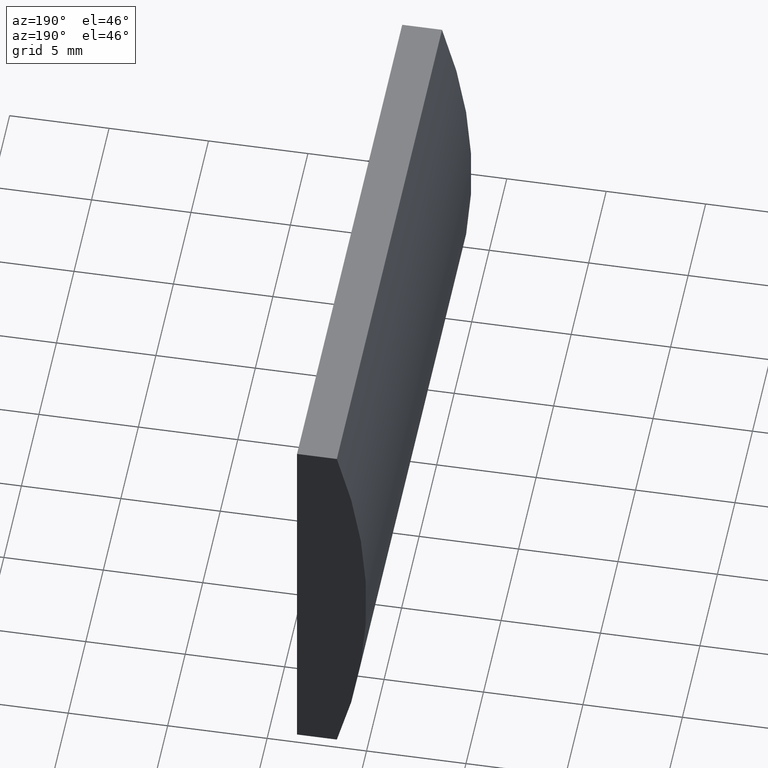
[diagram: clean part render]
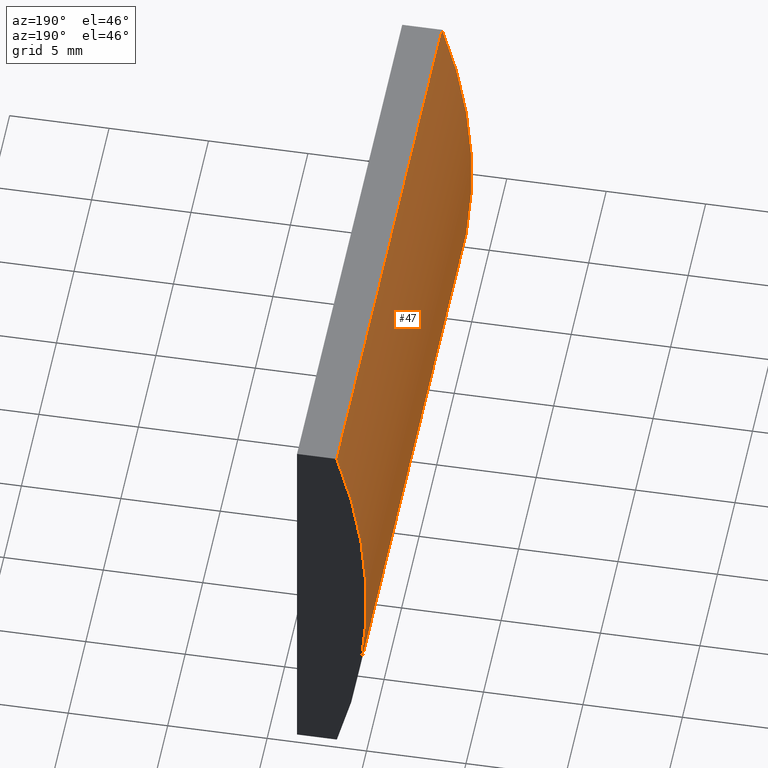
[diagram: same view with one face highlighted and labeled with its STEP entity id]
A machine part, auxiliary view. The second image highlights one B-rep face of the part: STEP entity #47.
In plain terms, the highlighted cylindrical surface (partial cylindrical patch) has radius 34.35 mm, axis along (-0, -1, -0).
Its self-contained STEP definition (entity closure, byte-faithful):
#11 = VECTOR ( 'NONE', #165, 1000.000000000000000 ) ;
#13 = EDGE_CURVE ( 'NONE', #67, #100, #183, .T. ) ;
#16 = CARTESIAN_POINT ( 'NONE',  ( -28.50696996935446800, 30.00000000000000000, 10.00000000000000000 ) ) ;
#25 = VERTEX_POINT ( 'NONE', #63 ) ;
#40 = CARTESIAN_POINT ( 'NONE',  ( 4.355204334851265500, 0.0000000000000000000, 4.286263797015675000E-017 ) ) ;
#43 = CARTESIAN_POINT ( 'NONE',  ( 4.355204334851265500, 30.00000000000000000, 4.286263797015675000E-017 ) ) ;
#47 = ADVANCED_FACE ( 'NONE', ( #65 ), #90, .T. ) ;
#56 = EDGE_CURVE ( 'NONE', #100, #178, #148, .T. ) ;
#57 = DIRECTION ( 'NONE',  ( 0.0000000000000000000, 1.000000000000000000, 0.0000000000000000000 ) ) ;
#61 = CARTESIAN_POINT ( 'NONE',  ( -28.50696996935446800, 0.0000000000000000000, -10.00000000000000000 ) ) ;
#63 = CARTESIAN_POINT ( 'NONE',  ( -28.50696996935446800, 30.00000000000000000, 10.00000000000000000 ) ) ;
#64 = ORIENTED_EDGE ( 'NONE', *, *, #80, .F. ) ;
#65 = FACE_OUTER_BOUND ( 'NONE', #136, .T. ) ;
#67 = VERTEX_POINT ( 'NONE', #89 ) ;
#71 = DIRECTION ( 'NONE',  ( -0.0000000000000000000, -1.000000000000000000, -0.0000000000000000000 ) ) ;
#80 = EDGE_CURVE ( 'NONE', #25, #178, #102, .T. ) ;
#89 = CARTESIAN_POINT ( 'NONE',  ( -28.50696996935446800, 30.00000000000000000, -10.00000000000000000 ) ) ;
#90 = CYLINDRICAL_SURFACE ( 'NONE', #174, 34.34999999999999400 ) ;
#96 = DIRECTION ( 'NONE',  ( 0.0000000000000000000, 0.0000000000000000000, -1.000000000000000000 ) ) ;
#100 = VERTEX_POINT ( 'NONE', #61 ) ;
#102 = LINE ( 'NONE', #16, #176 ) ;
#108 = ORIENTED_EDGE ( 'NONE', *, *, #13, .T. ) ;
#115 = DIRECTION ( 'NONE',  ( 0.0000000000000000000, 0.0000000000000000000, 1.000000000000000000 ) ) ;
#127 = DIRECTION ( 'NONE',  ( -0.0000000000000000000, -1.000000000000000000, -0.0000000000000000000 ) ) ;
#130 = CARTESIAN_POINT ( 'NONE',  ( -28.50696996935446800, 0.0000000000000000000, 10.00000000000000000 ) ) ;
#135 = AXIS2_PLACEMENT_3D ( 'NONE', #40, #188, #146 ) ;
#136 = EDGE_LOOP ( 'NONE', ( #189, #64, #137, #108 ) ) ;
#137 = ORIENTED_EDGE ( 'NONE', *, *, #195, .F. ) ;
#146 = DIRECTION ( 'NONE',  ( 0.0000000000000000000, 0.0000000000000000000, 1.000000000000000000 ) ) ;
#148 = CIRCLE ( 'NONE', #135, 34.34999999999999400 ) ;
#161 = CARTESIAN_POINT ( 'NONE',  ( 4.355204334851265500, 30.00000000000000000, 4.286263797015675000E-017 ) ) ;
#165 = DIRECTION ( 'NONE',  ( -0.0000000000000000000, -1.000000000000000000, -0.0000000000000000000 ) ) ;
#169 = AXIS2_PLACEMENT_3D ( 'NONE', #43, #57, #115 ) ;
#173 = CIRCLE ( 'NONE', #169, 34.34999999999999400 ) ;
#174 = AXIS2_PLACEMENT_3D ( 'NONE', #161, #127, #96 ) ;
#176 = VECTOR ( 'NONE', #71, 1000.000000000000000 ) ;
#178 = VERTEX_POINT ( 'NONE', #130 ) ;
#183 = LINE ( 'NONE', #191, #11 ) ;
#188 = DIRECTION ( 'NONE',  ( 0.0000000000000000000, 1.000000000000000000, 0.0000000000000000000 ) ) ;
#189 = ORIENTED_EDGE ( 'NONE', *, *, #56, .T. ) ;
#191 = CARTESIAN_POINT ( 'NONE',  ( -28.50696996935446800, 30.00000000000000000, -10.00000000000000000 ) ) ;
#195 = EDGE_CURVE ( 'NONE', #67, #25, #173, .T. ) ;